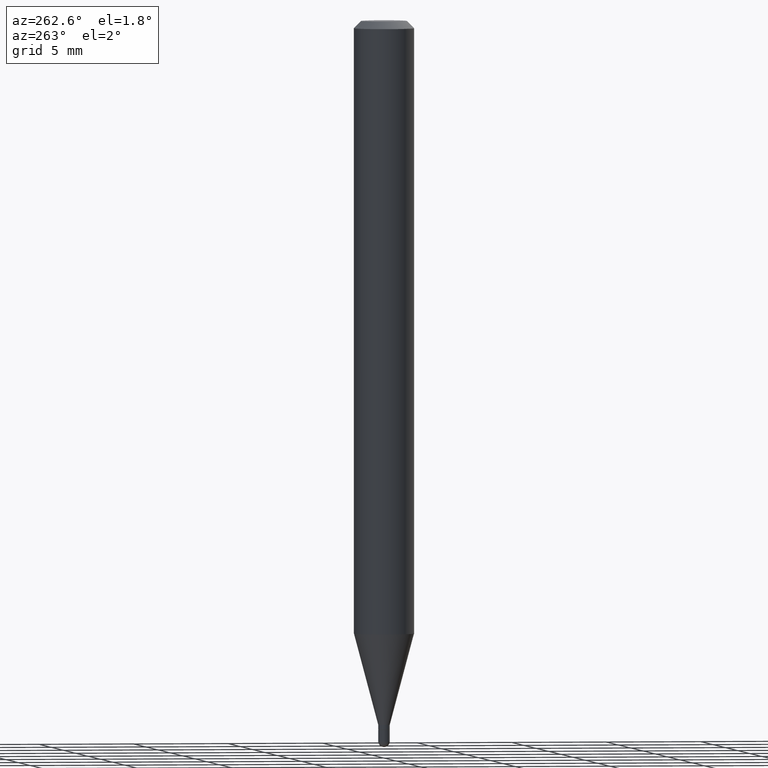
[diagram: clean part render]
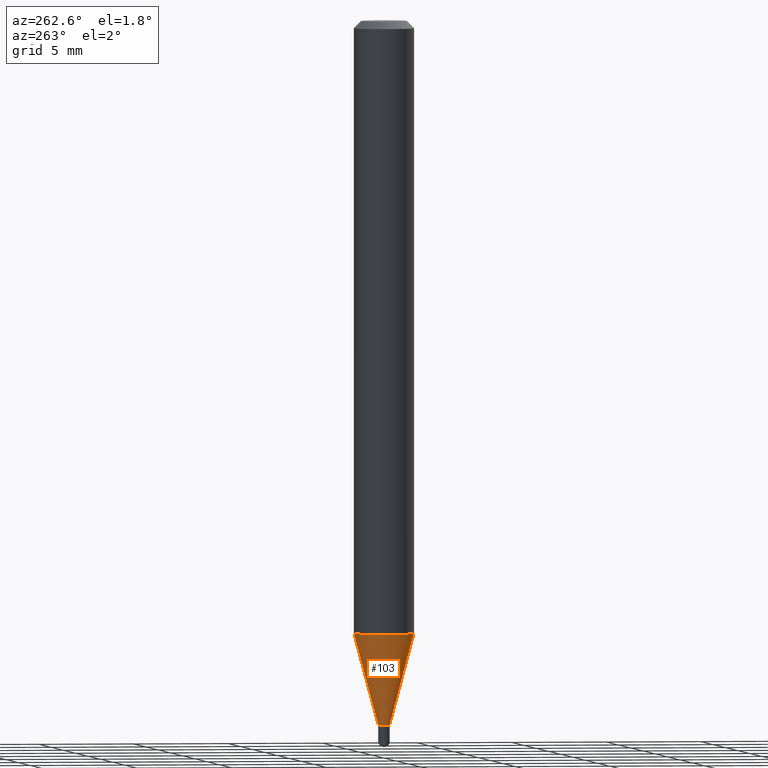
[diagram: same view with one face highlighted and labeled with its STEP entity id]
A machine part, auxiliary view. The second image highlights one B-rep face of the part: STEP entity #103.
In plain terms, the highlighted conical surface has half-angle 15 deg.
Its self-contained STEP definition (entity closure, byte-faithful):
#6 = DIRECTION ( 'NONE',  ( -6.982962677686265922E-15, -1.000000000000000000, 4.370956789862821150E-15 ) ) ;
#7 = EDGE_LOOP ( 'NONE', ( #463, #452, #326, #308 ) ) ;
#15 = CARTESIAN_POINT ( 'NONE',  ( 3.555703072272141171E-29, -5.076626142156755697E-15, -1.453999999999999737 ) ) ;
#16 = CARTESIAN_POINT ( 'NONE',  ( -8.379555213219910077E-17, -0.01200000000000499972, -1.453999999999999737 ) ) ;
#35 = DIRECTION ( 'NONE',  ( -2.445462910778639321E-29, 3.491489781400795201E-15, 1.000000000000000000 ) ) ;
#47 = VECTOR ( 'NONE', #294, 39.37007874015748143 ) ;
#89 = DIRECTION ( 'NONE',  ( -1.807323732225329745E-15, -0.2588190451025181305, 0.9659258262890689783 ) ) ;
#92 = CIRCLE ( 'NONE', #310, 0.06250000000000000000 ) ;
#96 = CARTESIAN_POINT ( 'NONE',  ( -4.364351673553606573E-16, -0.06250000000000442701, -1.265531434217771700 ) ) ;
#98 = CARTESIAN_POINT ( 'NONE',  ( 8.526512829124701746E-17, 0.01199999999999484465, -1.453999999999999737 ) ) ;
#103 = ADVANCED_FACE ( 'NONE', ( #401 ), #167, .T. ) ;
#111 = EDGE_CURVE ( 'NONE', #264, #489, #327, .T. ) ;
#136 = CARTESIAN_POINT ( 'NONE',  ( 4.440892098500932831E-16, 0.06249999999999555911, -1.265531434217772144 ) ) ;
#137 = AXIS2_PLACEMENT_3D ( 'NONE', #15, #286, #206 ) ;
#156 = DIRECTION ( 'NONE',  ( -2.445462910778639321E-29, 3.491489781400795201E-15, 1.000000000000000000 ) ) ;
#167 = CONICAL_SURFACE ( 'NONE', #137, 0.01199999999999992219, 0.2617993877991502405 ) ;
#178 = EDGE_CURVE ( 'NONE', #349, #485, #494, .T. ) ;
#206 = DIRECTION ( 'NONE',  ( -6.982962677686266711E-15, -1.000000000000000000, 0.000000000000000000 ) ) ;
#246 = CIRCLE ( 'NONE', #288, 0.01199999999999992219 ) ;
#264 = VERTEX_POINT ( 'NONE', #16 ) ;
#266 = CARTESIAN_POINT ( 'NONE',  ( 2.646771690706703907E-16, 0.01199999999999484465, -1.453999999999999737 ) ) ;
#271 = EDGE_CURVE ( 'NONE', #349, #264, #246, .T. ) ;
#286 = DIRECTION ( 'NONE',  ( -2.445462910778639321E-29, 3.491489781400795201E-15, 1.000000000000000000 ) ) ;
#288 = AXIS2_PLACEMENT_3D ( 'NONE', #477, #156, #364 ) ;
#294 = DIRECTION ( 'NONE',  ( 1.839019923739599921E-15, 0.2588190451025249028, 0.9659258262890670910 ) ) ;
#308 = ORIENTED_EDGE ( 'NONE', *, *, #317, .F. ) ;
#310 = AXIS2_PLACEMENT_3D ( 'NONE', #314, #35, #6 ) ;
#314 = CARTESIAN_POINT ( 'NONE',  ( 3.094810184804058923E-29, -4.418590070612843817E-15, -1.265531434217771922 ) ) ;
#317 = EDGE_CURVE ( 'NONE', #485, #489, #92, .T. ) ;
#326 = ORIENTED_EDGE ( 'NONE', *, *, #111, .T. ) ;
#327 = LINE ( 'NONE', #447, #345 ) ;
#345 = VECTOR ( 'NONE', #89, 39.37007874015748143 ) ;
#349 = VERTEX_POINT ( 'NONE', #266 ) ;
#364 = DIRECTION ( 'NONE',  ( -6.982962677686266711E-15, -1.000000000000000000, 0.000000000000000000 ) ) ;
#401 = FACE_OUTER_BOUND ( 'NONE', #7, .T. ) ;
#447 = CARTESIAN_POINT ( 'NONE',  ( -8.379555213219910077E-17, -0.01200000000000499972, -1.453999999999999737 ) ) ;
#452 = ORIENTED_EDGE ( 'NONE', *, *, #271, .T. ) ;
#463 = ORIENTED_EDGE ( 'NONE', *, *, #178, .F. ) ;
#477 = CARTESIAN_POINT ( 'NONE',  ( 3.555703072272141171E-29, -5.076626142156755697E-15, -1.453999999999999737 ) ) ;
#485 = VERTEX_POINT ( 'NONE', #136 ) ;
#489 = VERTEX_POINT ( 'NONE', #96 ) ;
#494 = LINE ( 'NONE', #98, #47 ) ;